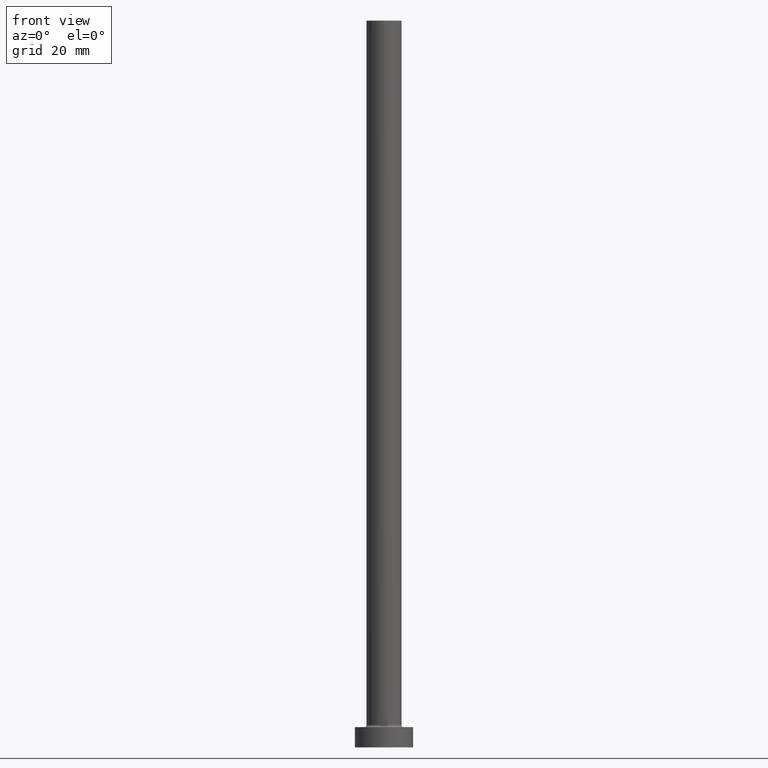
[diagram: clean part render]
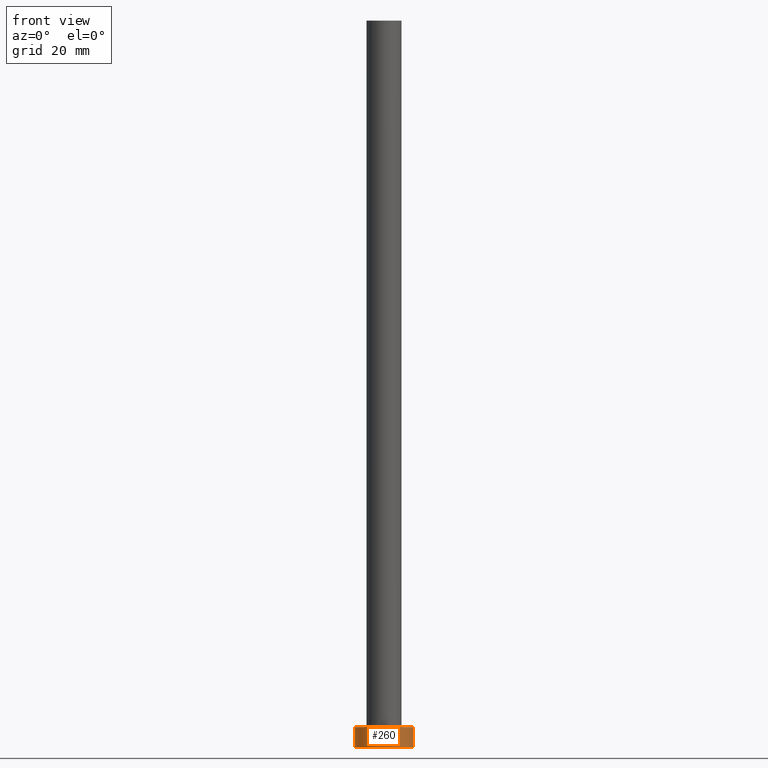
[diagram: same view with one face highlighted and labeled with its STEP entity id]
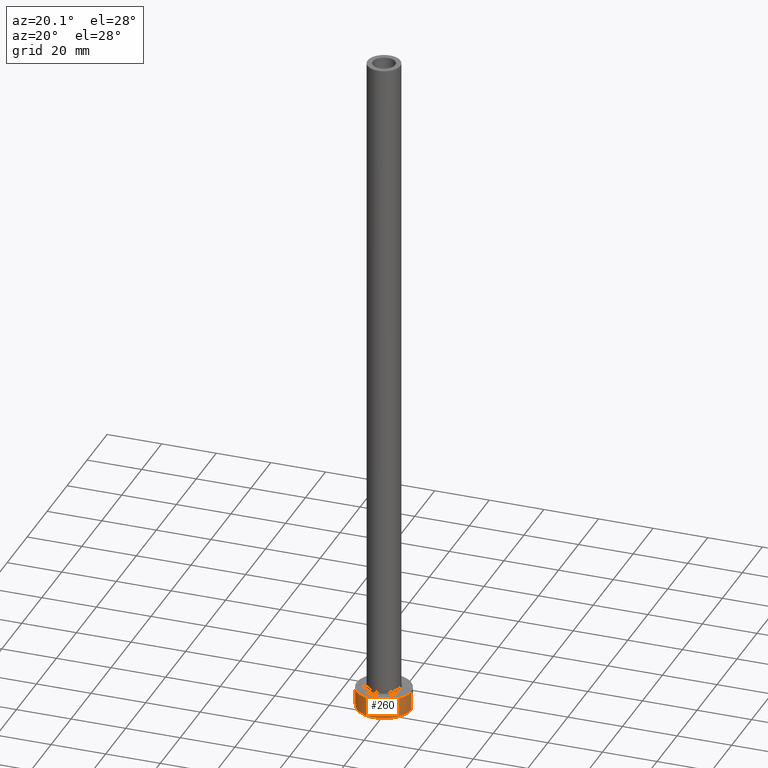
[diagram: same view with one face highlighted and labeled with its STEP entity id]
A machine part, front view. The second image highlights one B-rep face of the part: STEP entity #260.
A second angle (auxiliary view) of the same face is appended — the face is thin or edge-on in the first view.
In plain terms, the highlighted cylindrical surface (edge-blend (fillet) strip) has radius 10 mm, axis along (-0, -0, -1).
Its self-contained STEP definition (entity closure, byte-faithful):
#7 = DIRECTION ( 'NONE',  ( 0.000000000000000000, 0.000000000000000000, 1.000000000000000000 ) ) ;
#11 = CARTESIAN_POINT ( 'NONE',  ( 0.000000000000000000, 0.000000000000000000, 7.000000000000000000 ) ) ;
#18 = VERTEX_POINT ( 'NONE', #174 ) ;
#29 = CARTESIAN_POINT ( 'NONE',  ( 10.00000000000000000, 1.224646799147353256E-15, 0.000000000000000000 ) ) ;
#31 = ORIENTED_EDGE ( 'NONE', *, *, #442, .F. ) ;
#41 = CARTESIAN_POINT ( 'NONE',  ( 0.000000000000000000, 0.000000000000000000, 7.000000000000000000 ) ) ;
#47 = EDGE_CURVE ( 'NONE', #18, #113, #104, .T. ) ;
#50 = AXIS2_PLACEMENT_3D ( 'NONE', #225, #143, #101 ) ;
#78 = VECTOR ( 'NONE', #420, 1000.000000000000000 ) ;
#83 = ORIENTED_EDGE ( 'NONE', *, *, #47, .T. ) ;
#86 = VERTEX_POINT ( 'NONE', #284 ) ;
#101 = DIRECTION ( 'NONE',  ( 1.000000000000000000, 0.000000000000000000, 0.000000000000000000 ) ) ;
#104 = LINE ( 'NONE', #250, #78 ) ;
#113 = VERTEX_POINT ( 'NONE', #248 ) ;
#120 = VERTEX_POINT ( 'NONE', #29 ) ;
#143 = DIRECTION ( 'NONE',  ( 0.000000000000000000, 0.000000000000000000, 1.000000000000000000 ) ) ;
#147 = CIRCLE ( 'NONE', #184, 10.00000000000000000 ) ;
#167 = AXIS2_PLACEMENT_3D ( 'NONE', #41, #221, #429 ) ;
#174 = CARTESIAN_POINT ( 'NONE',  ( -10.00000000000000000, 0.000000000000000000, 7.000000000000000000 ) ) ;
#181 = LINE ( 'NONE', #185, #348 ) ;
#184 = AXIS2_PLACEMENT_3D ( 'NONE', #11, #7, #192 ) ;
#185 = CARTESIAN_POINT ( 'NONE',  ( 10.00000000000000000, 1.224646799147353256E-15, 7.000000000000000000 ) ) ;
#192 = DIRECTION ( 'NONE',  ( 1.000000000000000000, 0.000000000000000000, 0.000000000000000000 ) ) ;
#219 = FACE_OUTER_BOUND ( 'NONE', #340, .T. ) ;
#221 = DIRECTION ( 'NONE',  ( -0.000000000000000000, -0.000000000000000000, -1.000000000000000000 ) ) ;
#225 = CARTESIAN_POINT ( 'NONE',  ( 0.000000000000000000, 0.000000000000000000, 0.000000000000000000 ) ) ;
#246 = ORIENTED_EDGE ( 'NONE', *, *, #361, .F. ) ;
#248 = CARTESIAN_POINT ( 'NONE',  ( -10.00000000000000000, 0.000000000000000000, 0.000000000000000000 ) ) ;
#250 = CARTESIAN_POINT ( 'NONE',  ( -10.00000000000000000, 0.000000000000000000, 7.000000000000000000 ) ) ;
#260 = ADVANCED_FACE ( 'NONE', ( #219 ), #434, .T. ) ;
#265 = ORIENTED_EDGE ( 'NONE', *, *, #345, .T. ) ;
#284 = CARTESIAN_POINT ( 'NONE',  ( 10.00000000000000000, 1.224646799147353256E-15, 7.000000000000000000 ) ) ;
#320 = DIRECTION ( 'NONE',  ( -0.000000000000000000, -0.000000000000000000, -1.000000000000000000 ) ) ;
#340 = EDGE_LOOP ( 'NONE', ( #246, #31, #83, #265 ) ) ;
#345 = EDGE_CURVE ( 'NONE', #113, #120, #450, .T. ) ;
#348 = VECTOR ( 'NONE', #320, 1000.000000000000000 ) ;
#361 = EDGE_CURVE ( 'NONE', #86, #120, #181, .T. ) ;
#420 = DIRECTION ( 'NONE',  ( -0.000000000000000000, -0.000000000000000000, -1.000000000000000000 ) ) ;
#429 = DIRECTION ( 'NONE',  ( -1.000000000000000000, 0.000000000000000000, 0.000000000000000000 ) ) ;
#434 = CYLINDRICAL_SURFACE ( 'NONE', #167, 10.00000000000000000 ) ;
#442 = EDGE_CURVE ( 'NONE', #18, #86, #147, .T. ) ;
#450 = CIRCLE ( 'NONE', #50, 10.00000000000000000 ) ;